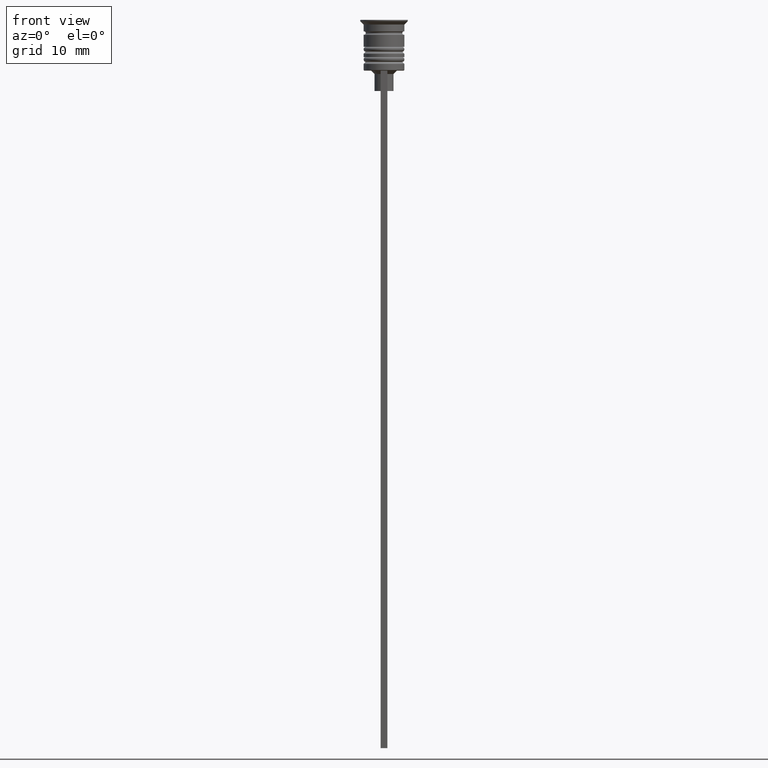
[diagram: clean part render]
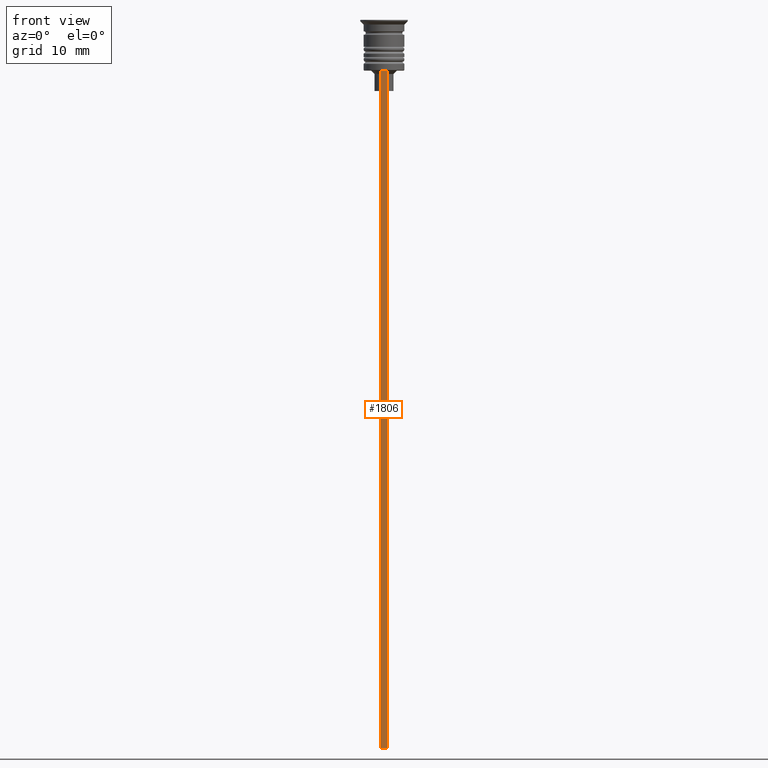
[diagram: same view with one face highlighted and labeled with its STEP entity id]
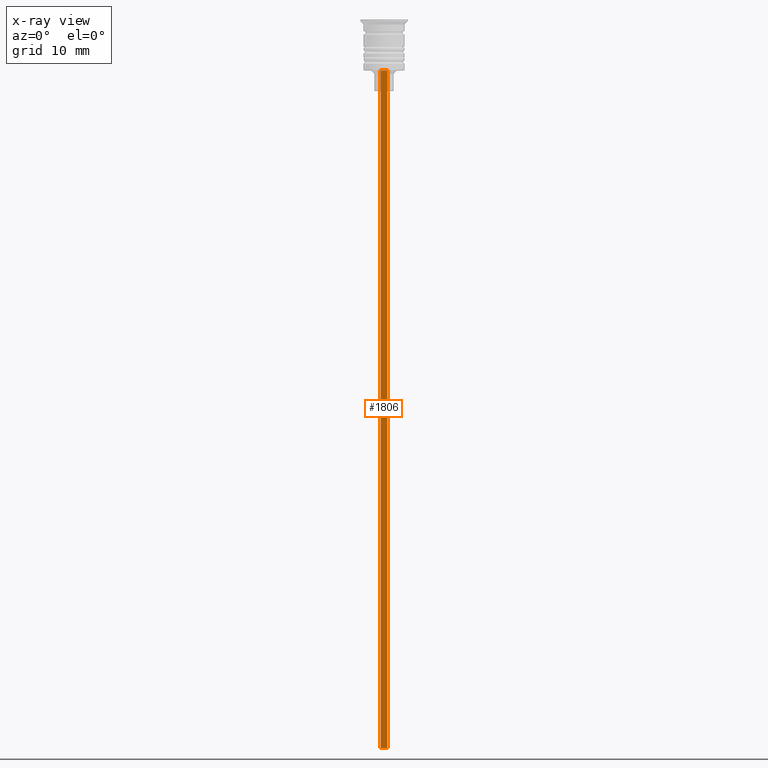
[diagram: x-ray of the same camera — body ghosted, the highlighted face saturated]
A machine part, front view. The second image highlights one B-rep face of the part: STEP entity #1806.
The next image is the same camera in x-ray: the body ghosted, the highlighted face saturated — about 0% of this face is hidden behind the body in this view.
In plain terms, the highlighted planar face has unit normal (0, -1, -0).
Its self-contained STEP definition (entity closure, byte-faithful):
#119 = EDGE_CURVE ( 'NONE', #417, #1703, #187, .T. ) ;
#138 = ORIENTED_EDGE ( 'NONE', *, *, #119, .T. ) ;
#162 = DIRECTION ( 'NONE',  ( -1.000000000000000000, 0.000000000000000000, 0.000000000000000000 ) ) ;
#187 = LINE ( 'NONE', #575, #590 ) ;
#313 = PLANE ( 'NONE',  #2137 ) ;
#372 = LINE ( 'NONE', #922, #1793 ) ;
#417 = VERTEX_POINT ( 'NONE', #1229 ) ;
#463 = LINE ( 'NONE', #2275, #1571 ) ;
#509 = DIRECTION ( 'NONE',  ( 0.000000000000000000, 0.000000000000000000, -1.000000000000000000 ) ) ;
#575 = CARTESIAN_POINT ( 'NONE',  ( -0.5000000000000001110, -3.000000000000000000, -1.417237469701779329 ) ) ;
#590 = VECTOR ( 'NONE', #1304, 1000.000000000000000 ) ;
#674 = DIRECTION ( 'NONE',  ( 0.000000000000000000, 0.000000000000000000, -1.000000000000000000 ) ) ;
#690 = CARTESIAN_POINT ( 'NONE',  ( 0.4999999999999998890, -3.000000000000000000, -1.417237469701779329 ) ) ;
#712 = VECTOR ( 'NONE', #162, 1000.000000000000000 ) ;
#922 = CARTESIAN_POINT ( 'NONE',  ( 0.4999999999999998890, -3.000000000000000000, -7.500000000000000000 ) ) ;
#924 = ORIENTED_EDGE ( 'NONE', *, *, #1411, .F. ) ;
#1229 = CARTESIAN_POINT ( 'NONE',  ( -0.5000000000000001110, -3.000000000000000000, -7.500000000000000000 ) ) ;
#1304 = DIRECTION ( 'NONE',  ( 0.000000000000000000, 0.000000000000000000, -1.000000000000000000 ) ) ;
#1403 = DIRECTION ( 'NONE',  ( 0.000000000000000000, -1.000000000000000000, -0.000000000000000000 ) ) ;
#1411 = EDGE_CURVE ( 'NONE', #417, #1871, #372, .T. ) ;
#1480 = CARTESIAN_POINT ( 'NONE',  ( -0.5000000000000001110, -3.000000000000000000, -107.5000000000000000 ) ) ;
#1525 = CARTESIAN_POINT ( 'NONE',  ( 0.4999999999999998890, -3.000000000000000000, -107.5000000000000000 ) ) ;
#1571 = VECTOR ( 'NONE', #674, 1000.000000000000000 ) ;
#1628 = DIRECTION ( 'NONE',  ( 1.000000000000000000, 0.000000000000000000, 0.000000000000000000 ) ) ;
#1653 = CARTESIAN_POINT ( 'NONE',  ( 0.4999999999999998890, -3.000000000000000000, -107.5000000000000000 ) ) ;
#1703 = VERTEX_POINT ( 'NONE', #1480 ) ;
#1776 = EDGE_CURVE ( 'NONE', #1871, #2321, #463, .T. ) ;
#1793 = VECTOR ( 'NONE', #1628, 1000.000000000000000 ) ;
#1806 = ADVANCED_FACE ( 'NONE', ( #1917 ), #313, .T. ) ;
#1830 = ORIENTED_EDGE ( 'NONE', *, *, #2157, .F. ) ;
#1871 = VERTEX_POINT ( 'NONE', #2148 ) ;
#1917 = FACE_OUTER_BOUND ( 'NONE', #1963, .T. ) ;
#1931 = ORIENTED_EDGE ( 'NONE', *, *, #1776, .F. ) ;
#1963 = EDGE_LOOP ( 'NONE', ( #924, #138, #1830, #1931 ) ) ;
#1974 = LINE ( 'NONE', #1653, #712 ) ;
#2137 = AXIS2_PLACEMENT_3D ( 'NONE', #690, #1403, #509 ) ;
#2148 = CARTESIAN_POINT ( 'NONE',  ( 0.4999999999999998890, -3.000000000000000000, -7.500000000000000000 ) ) ;
#2157 = EDGE_CURVE ( 'NONE', #2321, #1703, #1974, .T. ) ;
#2275 = CARTESIAN_POINT ( 'NONE',  ( 0.4999999999999998890, -3.000000000000000000, -1.417237469701779329 ) ) ;
#2321 = VERTEX_POINT ( 'NONE', #1525 ) ;